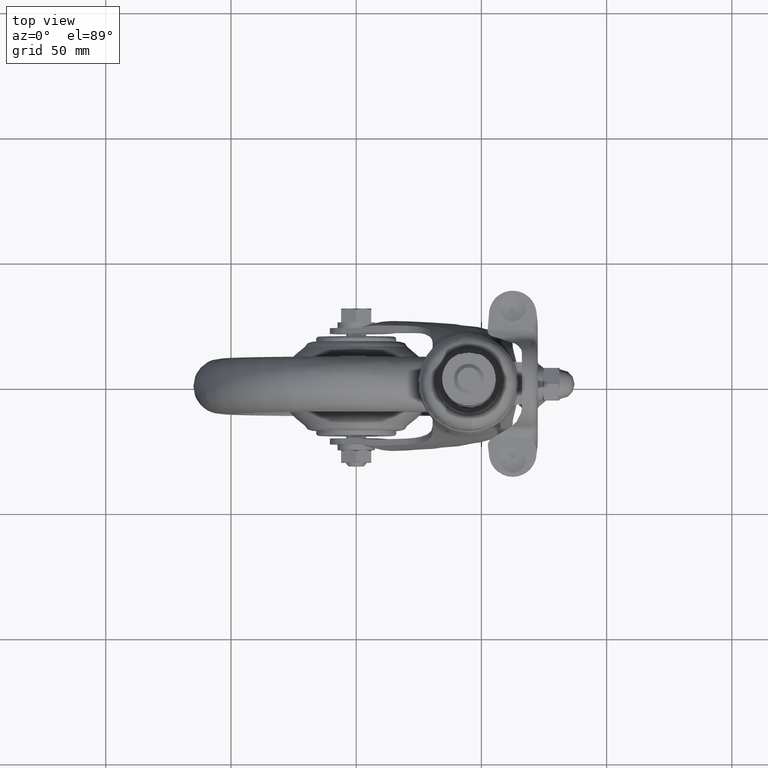
[diagram: clean part render]
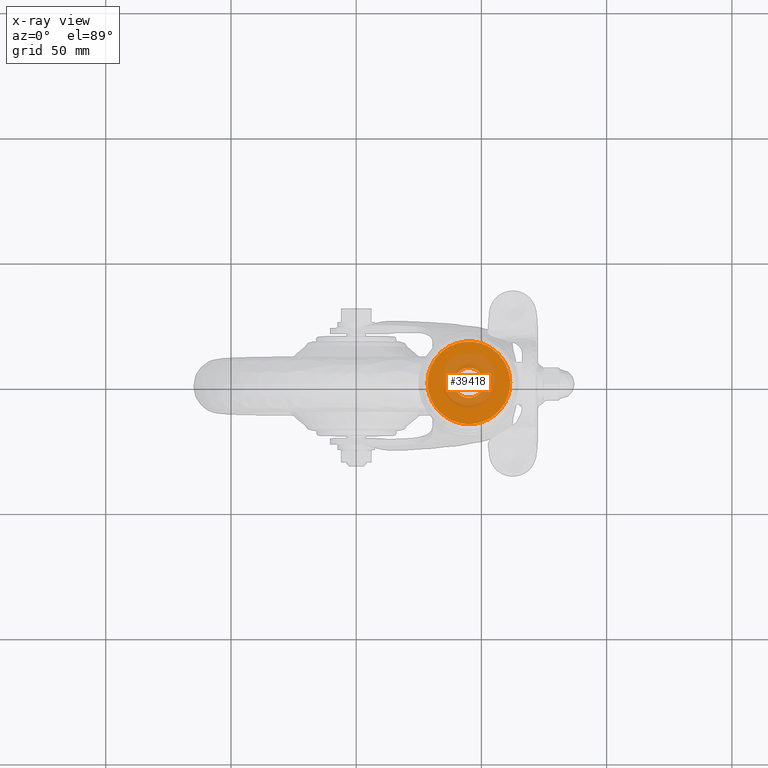
[diagram: x-ray — body ghosted, one internal face saturated and labeled with its STEP entity id]
A machine part, top view, then the same camera in x-ray: the body is ghosted and one INTERNAL B-rep face — a face not visible from any outside direction — is saturated and labeled: STEP entity #39418.
In plain terms, the highlighted face is a freeform B-spline surface patch.
Its self-contained STEP definition (entity closure, byte-faithful):
#19631=CARTESIAN_POINT('',(44.255231986712772,5.953597282852123,78.0));
#19632=VERTEX_POINT('',#19631);
#19638=CARTESIAN_POINT('',(39.0,0.0,78.0));
#19639=VERTEX_POINT('',#19638);
#19640=CARTESIAN_POINT('',(39.0,0.0,78.0));
#19641=CARTESIAN_POINT('',(39.0,5.296191599452141,78.0));
#19642=CARTESIAN_POINT('',(44.255231986712779,5.953597282852123,78.0));
#19650=(BOUNDED_CURVE()B_SPLINE_CURVE(2,(#19640,#19641,#19642),.UNSPECIFIED.,.F.,.U.)B_SPLINE_CURVE_WITH_KNOTS((3,3),(0.500000000000000,0.728526070983508),.UNSPECIFIED.)CURVE()GEOMETRIC_REPRESENTATION_ITEM()RATIONAL_B_SPLINE_CURVE((1.0,0.732265053947395,0.954005430185856))REPRESENTATION_ITEM(''));
#19651=EDGE_CURVE('',#19639,#19632,#19650,.T.);
#19653=CARTESIAN_POINT('',(45.052359214050092,-5.999771538375778,78.0));
#19654=VERTEX_POINT('',#19653);
#19655=CARTESIAN_POINT('',(45.052359214050099,-5.999771538375778,77.999999999999986));
#19656=CARTESIAN_POINT('',(45.026180105984103,-6.000000000000001,78.0));
#19657=CARTESIAN_POINT('',(45.0,-6.0,78.0));
#19658=CARTESIAN_POINT('',(39.000000000000007,-6.0,78.0));
#19659=CARTESIAN_POINT('',(39.0,0.0,78.0));
#19667=(BOUNDED_CURVE()B_SPLINE_CURVE(2,(#19655,#19656,#19657,#19658,#19659),.UNSPECIFIED.,.F.,.U.)B_SPLINE_CURVE_WITH_KNOTS((3,2,3),(0.248460105602783,0.250000000000000,0.500000000000000),.UNSPECIFIED.)CURVE()GEOMETRIC_REPRESENTATION_ITEM()RATIONAL_B_SPLINE_CURVE((0.996414027956387,0.998195901493465,1.0,0.707106781186548,1.0))REPRESENTATION_ITEM(''));
#19668=EDGE_CURVE('',#19654,#19639,#19667,.T.);
#19748=CARTESIAN_POINT('',(51.0,0.0,78.0));
#19749=VERTEX_POINT('',#19748);
#19750=CARTESIAN_POINT('',(51.0,0.0,78.0));
#19751=CARTESIAN_POINT('',(51.0,-5.947867261468435,78.0));
#19752=CARTESIAN_POINT('',(45.052359214050099,-5.999771538375778,77.999999999999986));
#19760=(BOUNDED_CURVE()B_SPLINE_CURVE(2,(#19750,#19751,#19752),.UNSPECIFIED.,.F.,.U.)B_SPLINE_CURVE_WITH_KNOTS((3,3),(0.0,0.248460105602783),.UNSPECIFIED.)CURVE()GEOMETRIC_REPRESENTATION_ITEM()RATIONAL_B_SPLINE_CURVE((1.0,0.708910879693083,0.996414027956387))REPRESENTATION_ITEM(''));
#19761=EDGE_CURVE('',#19749,#19654,#19760,.T.);
#19763=CARTESIAN_POINT('',(44.255231986712772,5.953597282852123,78.0));
#19764=CARTESIAN_POINT('',(44.626170433981322,5.999999999999999,77.999999999999986));
#19765=CARTESIAN_POINT('',(45.0,6.0,78.0));
#19766=CARTESIAN_POINT('',(50.999999999999986,6.0,78.0));
#19767=CARTESIAN_POINT('',(51.0,0.0,78.0));
#19775=(BOUNDED_CURVE()B_SPLINE_CURVE(2,(#19763,#19764,#19765,#19766,#19767),.UNSPECIFIED.,.F.,.U.)B_SPLINE_CURVE_WITH_KNOTS((3,2,3),(0.728526070983508,0.750000000000000,1.0),.UNSPECIFIED.)CURVE()GEOMETRIC_REPRESENTATION_ITEM()RATIONAL_B_SPLINE_CURVE((0.954005430185857,0.974841727239153,1.0,0.707106781186548,1.0))REPRESENTATION_ITEM(''));
#19776=EDGE_CURVE('',#19632,#19749,#19775,.T.);
#19840=CARTESIAN_POINT('',(59.400216019207292,-8.055046778272974,78.0));
#19841=VERTEX_POINT('',#19840);
#19847=CARTESIAN_POINT('',(28.500000000000000,0.0,78.0));
#19848=VERTEX_POINT('',#19847);
#19849=CARTESIAN_POINT('',(59.400216019207285,-8.055046778272974,78.0));
#19850=CARTESIAN_POINT('',(54.676363741513327,-16.499999999999996,78.0));
#19851=CARTESIAN_POINT('',(45.0,-16.500000000000000,78.0));
#19852=CARTESIAN_POINT('',(28.499999999999993,-16.499999999999993,78.0));
#19853=CARTESIAN_POINT('',(28.500000000000000,0.0,78.0));
#19861=(BOUNDED_CURVE()B_SPLINE_CURVE(2,(#19849,#19850,#19851,#19852,#19853),.UNSPECIFIED.,.F.,.U.)B_SPLINE_CURVE_WITH_KNOTS((3,2,3),(0.583182285881373,0.750000000000000,1.0),.UNSPECIFIED.)CURVE()GEOMETRIC_REPRESENTATION_ITEM()RATIONAL_B_SPLINE_CURVE((0.869943425319905,0.804560891026772,1.0,0.707106781186548,1.0))REPRESENTATION_ITEM(''));
#19862=EDGE_CURVE('',#19841,#19848,#19861,.T.);
#19864=CARTESIAN_POINT('',(53.865422534919922,13.915972236129029,78.0));
#19865=VERTEX_POINT('',#19864);
#19866=CARTESIAN_POINT('',(28.500000000000000,0.0,78.0));
#19867=CARTESIAN_POINT('',(28.499999999999993,16.499999999999993,78.0));
#19868=CARTESIAN_POINT('',(45.0,16.500000000000000,78.0));
#19869=CARTESIAN_POINT('',(49.809297913959618,16.500000000000004,78.0));
#19870=CARTESIAN_POINT('',(53.865422534919922,13.915972236129033,78.0));
#19878=(BOUNDED_CURVE()B_SPLINE_CURVE(2,(#19866,#19867,#19868,#19869,#19870),.UNSPECIFIED.,.F.,.U.)B_SPLINE_CURVE_WITH_KNOTS((3,2,3),(0.0,0.250000000000000,0.341949846253113),.UNSPECIFIED.)CURVE()GEOMETRIC_REPRESENTATION_ITEM()RATIONAL_B_SPLINE_CURVE((1.0,0.707106781186548,1.0,0.892274054246094,0.863791181688531))REPRESENTATION_ITEM(''));
#19879=EDGE_CURVE('',#19848,#19865,#19878,.T.);
#20099=CARTESIAN_POINT('',(61.500000000000000,0.0,78.0));
#20100=VERTEX_POINT('',#20099);
#20101=CARTESIAN_POINT('',(53.865422534919922,13.915972236129033,78.0));
#20102=CARTESIAN_POINT('',(61.500000000000014,9.052226178381067,78.000000000000014));
#20103=CARTESIAN_POINT('',(61.500000000000000,0.0,78.0));
#20111=(BOUNDED_CURVE()B_SPLINE_CURVE(2,(#20101,#20102,#20103),.UNSPECIFIED.,.F.,.U.)B_SPLINE_CURVE_WITH_KNOTS((3,3),(0.341949846253113,0.500000000000000),.UNSPECIFIED.)CURVE()GEOMETRIC_REPRESENTATION_ITEM()RATIONAL_B_SPLINE_CURVE((0.863791181688531,0.814832726940453,1.0))REPRESENTATION_ITEM(''));
#20112=EDGE_CURVE('',#19865,#20100,#20111,.T.);
#20114=CARTESIAN_POINT('',(61.500000000000000,0.0,78.0));
#20115=CARTESIAN_POINT('',(61.500000000000000,-4.301208501564075,78.0));
#20116=CARTESIAN_POINT('',(59.400216019207292,-8.055046778272974,78.0));
#20124=(BOUNDED_CURVE()B_SPLINE_CURVE(2,(#20114,#20115,#20116),.UNSPECIFIED.,.F.,.U.)B_SPLINE_CURVE_WITH_KNOTS((3,3),(0.500000000000000,0.583182285881374),.UNSPECIFIED.)CURVE()GEOMETRIC_REPRESENTATION_ITEM()RATIONAL_B_SPLINE_CURVE((1.0,0.902545890159775,0.869943425319905))REPRESENTATION_ITEM(''));
#20125=EDGE_CURVE('',#20100,#19841,#20124,.T.);
#39401=CARTESIAN_POINT('',(62.635842954216884,-18.634850624037369,78.0));
#39402=CARTESIAN_POINT('',(63.645576636866139,17.627473699690039,78.0));
#39403=CARTESIAN_POINT('',(26.360579561099591,-17.624756649696160,78.0));
#39404=CARTESIAN_POINT('',(27.370313243748829,18.637567674031249,78.0));
#39405=B_SPLINE_SURFACE_WITH_KNOTS('',1,1,((#39401,#39403),(#39402,#39404)),.UNSPECIFIED.,.F.,.F.,.U.,(2,2),(2,2),(0.0,36.276379745904492),(0.0,36.289323830529518),.UNSPECIFIED.);
#39406=ORIENTED_EDGE('',*,*,#19862,.F.);
#39407=ORIENTED_EDGE('',*,*,#20125,.F.);
#39408=ORIENTED_EDGE('',*,*,#20112,.F.);
#39409=ORIENTED_EDGE('',*,*,#19879,.F.);
#39410=EDGE_LOOP('',(#39406,#39407,#39408,#39409));
#39411=FACE_OUTER_BOUND('',#39410,.T.);
#39412=ORIENTED_EDGE('',*,*,#19761,.T.);
#39413=ORIENTED_EDGE('',*,*,#19668,.T.);
#39414=ORIENTED_EDGE('',*,*,#19651,.T.);
#39415=ORIENTED_EDGE('',*,*,#19776,.T.);
#39416=EDGE_LOOP('',(#39412,#39413,#39414,#39415));
#39417=FACE_BOUND('',#39416,.T.);
#39418=ADVANCED_FACE('',(#39411,#39417),#39405,.T.);